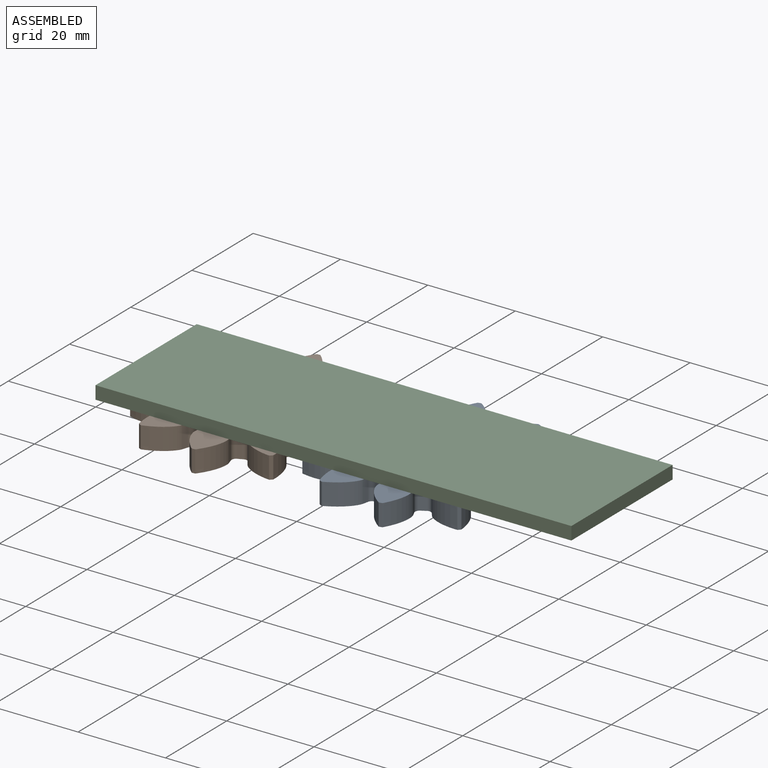
[diagram: assembled view]
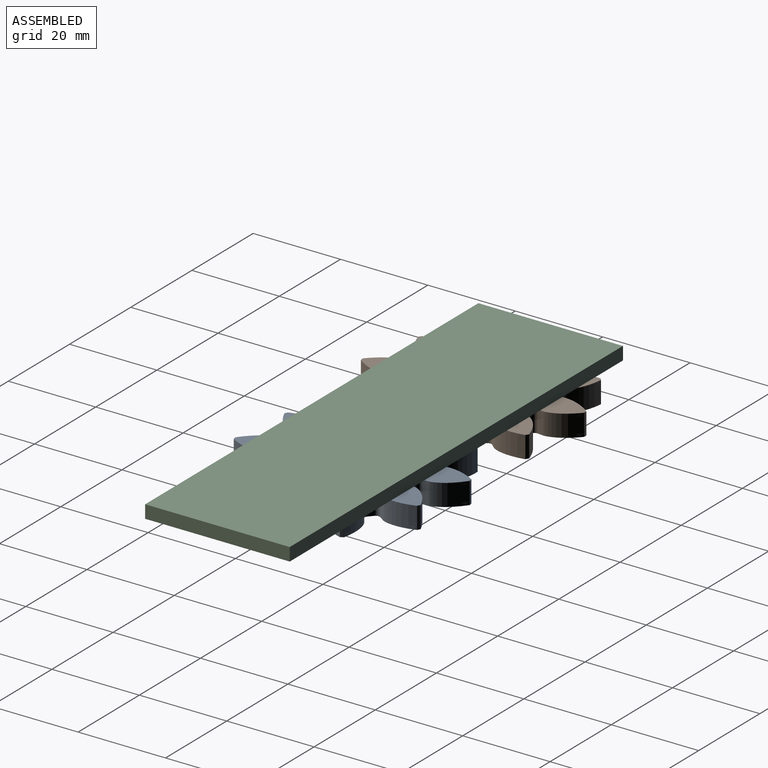
[diagram: assembled view, second angle]
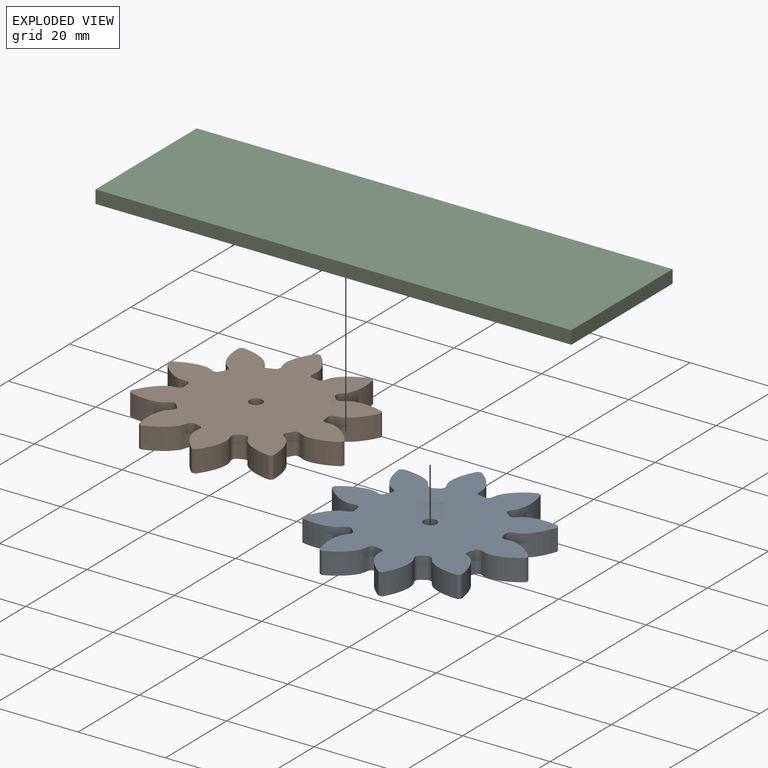
[diagram: exploded view]
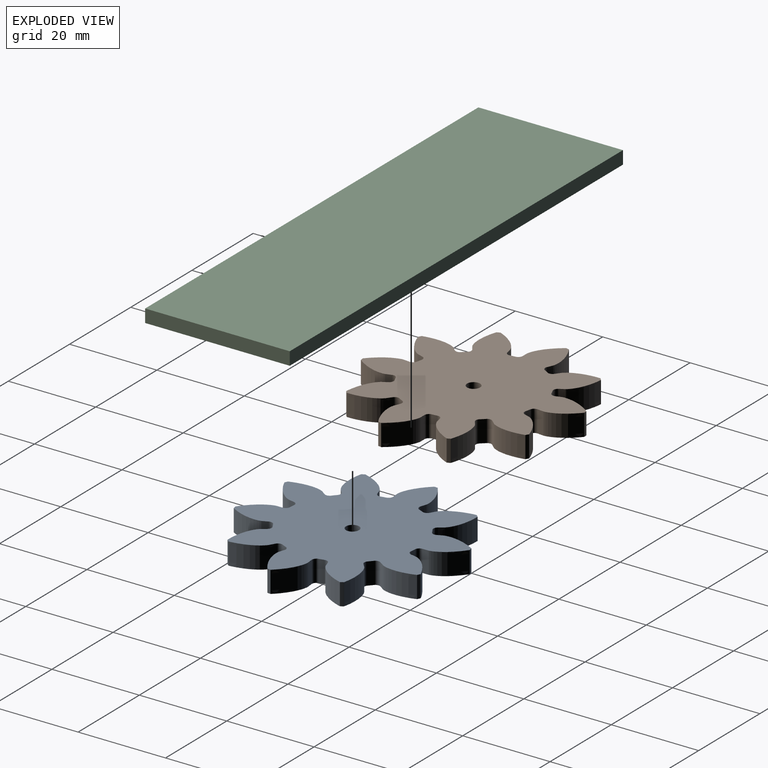
[diagram: exploded view, second angle]
ASSEMBLY  parts=3 mates=2
PART A: 63 faces, bbox 46x5x48.1 mm
  f0: extruded ~7.03x5.4mm, area 46.2mm2, adj f40,f41,f42,f43
  f1: cylinder r=15mm len=5mm, axis (0,1,0), area 5.8mm2, adj f41,f42,f43,f44
  f2: extruded ~7.03x5.4mm, area 46.2mm2, adj f3,f41,f42,f44
  f3: cylinder r=24mm len=5mm, axis (0,1,0), area 3.9mm2, adj f2,f4,f41,f42
  f4: extruded ~8.86x5mm, area 46.2mm2, adj f3,f41,f42,f45
  f5: cylinder r=15mm len=5mm, axis (0,1,0), area 5.8mm2, adj f41,f42,f45,f46
  f6: extruded ~8.5x5mm, area 46.2mm2, adj f7,f41,f42,f46
  f7: cylinder r=24mm len=5mm, axis (0,1,0), area 3.9mm2, adj f6,f8,f41,f42
  f8: extruded ~7.31x5.02mm, area 46.2mm2, adj f7,f41,f42,f47
  f9: cylinder r=15mm len=5mm, axis (0,1,0), area 5.8mm2, adj f41,f42,f47,f48
  f10: extruded ~8.35x5mm, area 46.2mm2, adj f11,f41,f42,f48
  f11: cylinder r=24mm len=5mm, axis (0,1,0), area 3.9mm2, adj f10,f12,f41,f42
  f12: extruded ~8.35x5mm, area 46.2mm2, adj f11,f41,f42,f49
  f13: cylinder r=15mm len=5mm, axis (0,1,0), area 5.8mm2, adj f41,f42,f49,f50
  f14: extruded ~7.31x5.02mm, area 46.2mm2, adj f15,f41,f42,f50
  f15: cylinder r=24mm len=5mm, axis (0,1,0), area 3.9mm2, adj f14,f16,f41,f42
  f16: extruded ~8.5x5mm, area 46.2mm2, adj f15,f41,f42,f51
  f17: cylinder r=15mm len=5mm, axis (0,1,0), area 5.8mm2, adj f41,f42,f51,f52
  f18: extruded ~8.86x5mm, area 46.2mm2, adj f19,f41,f42,f52
  f19: cylinder r=24mm len=5mm, axis (0,1,0), area 3.9mm2, adj f18,f20,f41,f42
  f20: extruded ~7.03x5.4mm, area 46.2mm2, adj f19,f41,f42,f53
  f21: cylinder r=15mm len=5mm, axis (0,1,0), area 5.8mm2, adj f41,f42,f53,f54
  f22: extruded ~7.03x5.4mm, area 46.2mm2, adj f23,f41,f42,f54
  f23: cylinder r=24mm len=5mm, axis (0,1,0), area 3.9mm2, adj f22,f24,f41,f42
  f24: extruded ~8.86x5mm, area 46.2mm2, adj f23,f41,f42,f55
  f25: cylinder r=15mm len=5mm, axis (0,1,0), area 5.8mm2, adj f41,f42,f55,f56
  f26: extruded ~8.5x5mm, area 46.2mm2, adj f27,f41,f42,f56
  f27: cylinder r=24mm len=5mm, axis (0,1,0), area 3.9mm2, adj f26,f28,f41,f42
  f28: extruded ~7.31x5.02mm, area 46.2mm2, adj f27,f41,f42,f57
  f29: cylinder r=15mm len=5mm, axis (0,1,0), area 5.8mm2, adj f41,f42,f57,f58
  f30: extruded ~8.35x5mm, area 46.2mm2, adj f31,f41,f42,f58
  f31: cylinder r=24mm len=5mm, axis (0,1,0), area 3.9mm2, adj f30,f32,f41,f42
  f32: extruded ~8.35x5mm, area 46.2mm2, adj f31,f41,f42,f59
  f33: cylinder r=15mm len=5mm, axis (0,1,0), area 5.8mm2, adj f41,f42,f59,f60
  f34: extruded ~7.31x5.02mm, area 46.2mm2, adj f35,f41,f42,f60
  f35: cylinder r=24mm len=5mm, axis (0,1,0), area 3.9mm2, adj f34,f36,f41,f42
  f36: extruded ~8.5x5mm, area 46.2mm2, adj f35,f41,f42,f61
  f37: cylinder r=15mm len=5mm, axis (0,1,0), area 5.8mm2, adj f41,f42,f61,f62
  f38: extruded ~8.86x5mm, area 46.2mm2, adj f40,f41,f42,f62
  f39: cylinder r=1.5mm len=5mm, axis (0,1,0), area 47.1mm2, adj f41,f42
  f40: cylinder r=24mm len=5mm, axis (0,1,0), area 3.9mm2, adj f0,f38,f41,f42
  f41: plane 48.08x45.97mm, normal (0,-1,0), area 1205.6mm2, adj f0,f1,f2,f3,f4,f5,f6,f7
  f42: plane 48.08x45.97mm, normal (0,1,0), area 1205.6mm2, adj f0,f1,f2,f3,f4,f5,f6,f7
  f43: cylinder r=1.03mm len=5mm, axis (0,1,0), area 7.8mm2, adj f0,f1,f41,f42
  f44: cylinder r=1.03mm len=5mm, axis (0,1,0), area 7.8mm2, adj f1,f2,f41,f42
  f45: cylinder r=1.03mm len=5mm, axis (0,1,0), area 7.8mm2, adj f4,f5,f41,f42
  f46: cylinder r=1.03mm len=5mm, axis (0,1,0), area 7.8mm2, adj f5,f6,f41,f42
  f47: cylinder r=1.03mm len=5mm, axis (0,1,0), area 7.8mm2, adj f8,f9,f41,f42
  f48: cylinder r=1.03mm len=5mm, axis (0,1,0), area 7.8mm2, adj f9,f10,f41,f42
  f49: cylinder r=1.03mm len=5mm, axis (0,1,0), area 7.8mm2, adj f12,f13,f41,f42
  f50: cylinder r=1.03mm len=5mm, axis (0,1,0), area 7.8mm2, adj f13,f14,f41,f42
  f51: cylinder r=1.03mm len=5mm, axis (0,1,0), area 7.8mm2, adj f16,f17,f41,f42
  f52: cylinder r=1.03mm len=5mm, axis (0,1,0), area 7.8mm2, adj f17,f18,f41,f42
  f53: cylinder r=1.03mm len=5mm, axis (0,1,0), area 7.8mm2, adj f20,f21,f41,f42
  f54: cylinder r=1.03mm len=5mm, axis (0,1,0), area 7.8mm2, adj f21,f22,f41,f42
  f55: cylinder r=1.03mm len=5mm, axis (0,1,0), area 7.8mm2, adj f24,f25,f41,f42
  f56: cylinder r=1.03mm len=5mm, axis (0,1,0), area 7.8mm2, adj f25,f26,f41,f42
  f57: cylinder r=1.03mm len=5mm, axis (0,1,0), area 7.8mm2, adj f28,f29,f41,f42
  f58: cylinder r=1.03mm len=5mm, axis (0,1,0), area 7.8mm2, adj f29,f30,f41,f42
  f59: cylinder r=1.03mm len=5mm, axis (0,1,0), area 7.8mm2, adj f32,f33,f41,f42
  f60: cylinder r=1.03mm len=5mm, axis (0,1,0), area 7.8mm2, adj f33,f34,f41,f42
  f61: cylinder r=1.03mm len=5mm, axis (0,1,0), area 7.8mm2, adj f36,f37,f41,f42
  f62: cylinder r=1.03mm len=5mm, axis (0,1,0), area 7.8mm2, adj f37,f38,f41,f42
PART B: same geometry as A
PART C: 10 faces, bbox 108.9x5x33.1 mm
  f0: plane 33.08x3mm, normal (-1,0,0), area 99.3mm2, adj f1,f3,f4,f5
  f1: plane 108.91x3mm, normal (0,0,-1), area 326.7mm2, adj f0,f2,f4,f5
  f2: plane 33.08x3mm, normal (1,0,0), area 99.3mm2, adj f1,f3,f4,f5
  f3: plane 108.91x3mm, normal (0,0,1), area 326.7mm2, adj f0,f2,f4,f5
  f4: plane 108.91x33.08mm, normal (0,-1,0), area 3602.8mm2, adj f0,f1,f2,f3,f6,f8
  f5: plane 108.91x33.08mm, normal (0,1,0), area 3603.2mm2, adj f0,f1,f2,f3
  f6: cylinder r=0.25mm len=2mm, axis (0,1,0), area 3.1mm2, adj f4,f7
  f7: plane 0.5x0.5mm, normal (0,-1,0), area 0.2mm2, adj f6
  f8: cylinder r=0.25mm len=2mm, axis (0,1,0), area 3.1mm2, adj f4,f9
  f9: plane 0.5x0.5mm, normal (0,-1,0), area 0.2mm2, adj f8
PLACE A rot(axis=(-0.62,-0.56,0.56),116.7deg) t=(10.47,0.12,-8)mm
PLACE B rot(axis=(-1,-0.05,0.05),90.1deg) t=(-29.28,-0.01,-8)mm
PLACE C rot(axis=(1,0,0),90deg) t=(-4.78,16.54,0)mm
MATE revolute C.f8 <-> A.f3  axis (0,0,-1) through (10.47,0.12,-3)mm
MATE revolute C.f6 <-> B.f3  axis (0,0,-1) through (-29.28,-0.01,-3)mm
